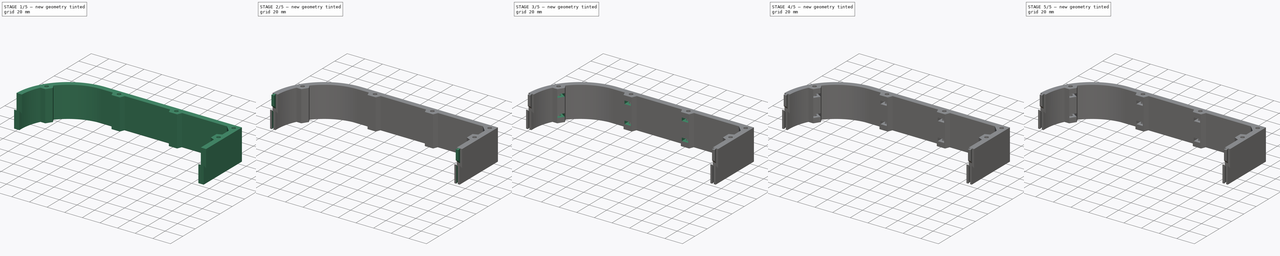
[diagram: build sequence overview — one tinted view per stage of 5, left to right]
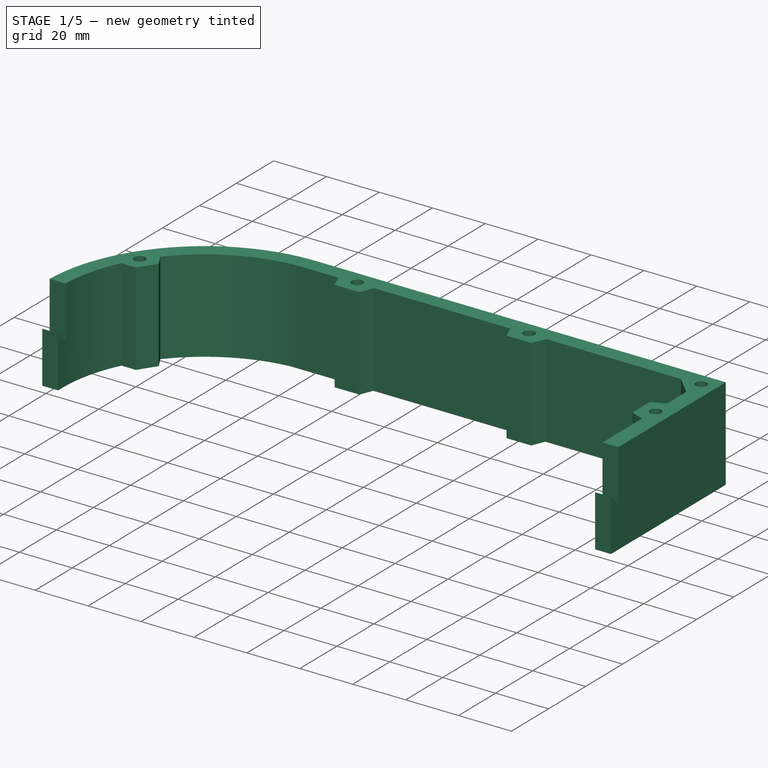
[diagram: stage 1 of 5 — iso view after this stage's code; geometry added in this stage tinted green]
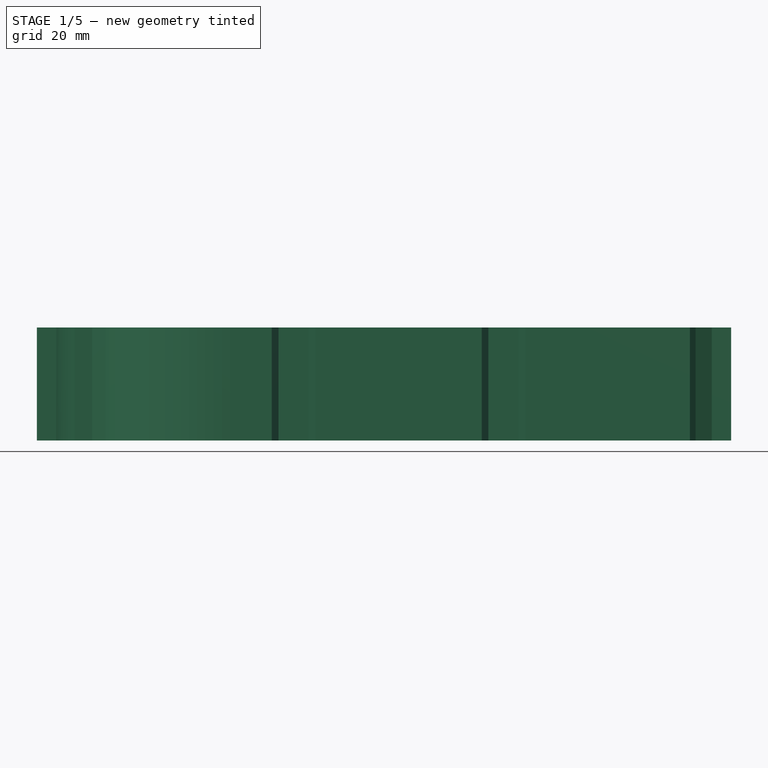
[diagram: stage 1 of 5 — front view after this stage's code; geometry added in this stage tinted green]
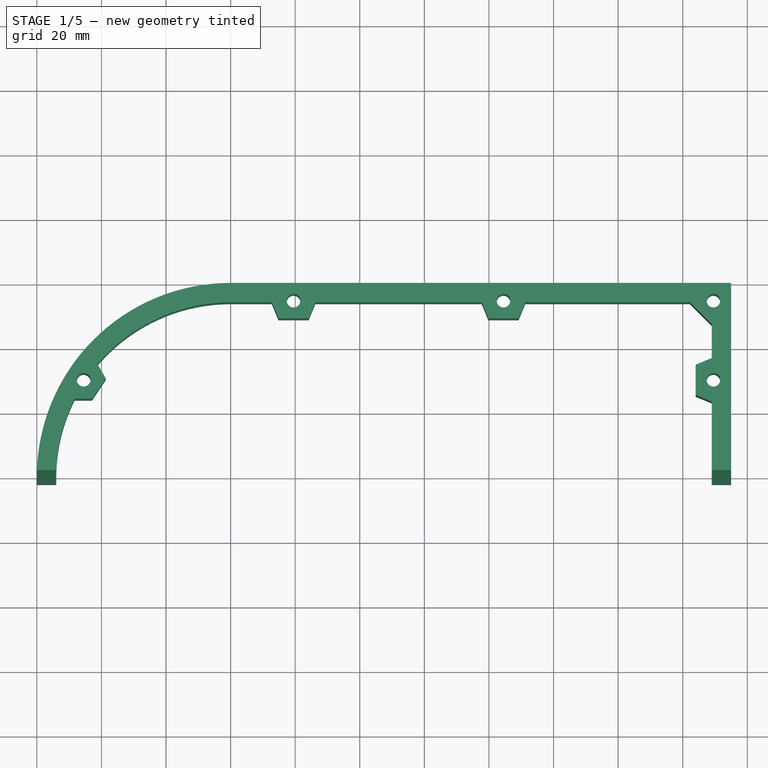
[diagram: stage 1 of 5 — top view after this stage's code; geometry added in this stage tinted green]
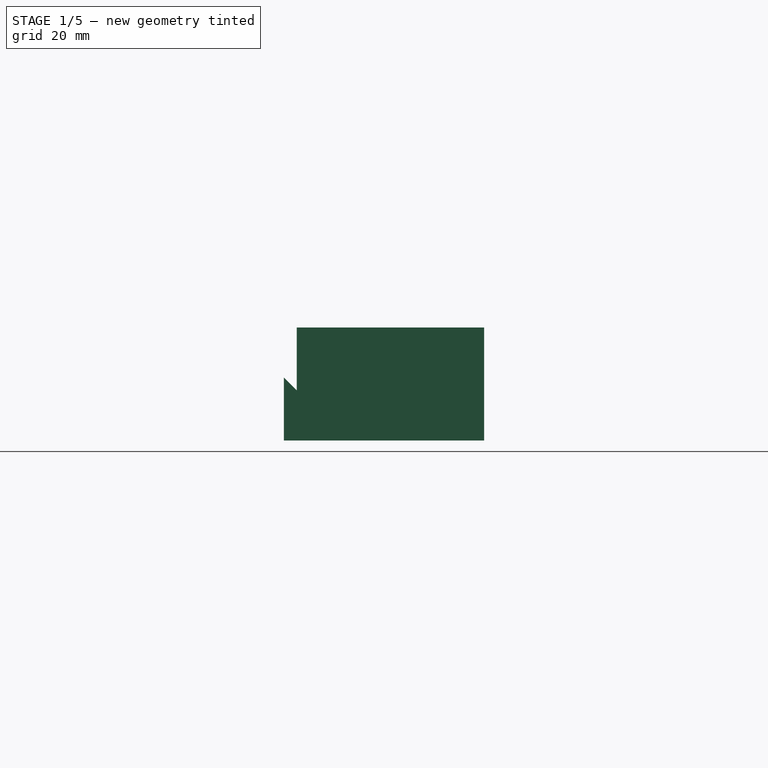
[diagram: stage 1 of 5 — right view after this stage's code; geometry added in this stage tinted green]
FCSTD DOCUMENT  (FreeCAD 0.19R24276 (Git))
Label: Base_half-wall
License: All rights reserved
LicenseURL: http://en.wikipedia.org/wiki/All_rights_reserved
objects: Sketcher::SketchObject×11, PartDesign::Pocket×8, PartDesign::Pad×3, PartDesign::Chamfer×2, PartDesign::Fillet×2, PartDesign::LinearPattern×1, PartDesign::Body×1
note: 43 computed .brp shape members not serialized (recipe doc carries the construction recipe); baked Part::Feature solids carry a one-line shape summary decoded from their .brp

FEATURE [Sketcher::SketchObject] Sketch
  FullyConstrained = true
  MapMode = 5
  Support = -> [XY_Plane]
  sketch-geometry (12):
    g0: ArcOfCircle CenterX=0 CenterY=0 CenterZ=0 NormalX=0 NormalY=0 NormalZ=1 AngleXU=0 Radius=60 StartAngle=1.5708 EndAngle=4.71239
    g1: LineSegment StartX=3.7e-15 StartY=60 StartZ=0 EndX=155 EndY=60 EndZ=0
    g2: LineSegment StartX=155 StartY=60 StartZ=0 EndX=155 EndY=-60 EndZ=0
    g3: LineSegment StartX=155 StartY=-60 StartZ=0 EndX=0 EndY=-60 EndZ=0
    g4: ArcOfCircle CenterX=0 CenterY=0 CenterZ=0 NormalX=0 NormalY=0 NormalZ=1 AngleXU=0 Radius=49 StartAngle=1.5708 EndAngle=4.71239
    g5: ArcOfCircle CenterX=0 CenterY=0 CenterZ=0 NormalX=0 NormalY=0 NormalZ=1 AngleXU=0 Radius=54.5 StartAngle=1.5708 EndAngle=4.71239
    g6: LineSegment StartX=3e-15 StartY=49 StartZ=0 EndX=144 EndY=49 EndZ=0
    g7: LineSegment StartX=144 StartY=49 StartZ=0 EndX=144 EndY=-49 EndZ=0
    g8: LineSegment StartX=144 StartY=-49 StartZ=0 EndX=0 EndY=-49 EndZ=0
    g9: LineSegment StartX=3.3e-15 StartY=54.5 StartZ=0 EndX=149.5 EndY=54.5 EndZ=0
    g10: LineSegment StartX=149.5 StartY=54.5 StartZ=0 EndX=149.5 EndY=-54.5 EndZ=0
    g11: LineSegment StartX=149.5 StartY=-54.5 StartZ=0 EndX=0 EndY=-54.5 EndZ=0
  constraints (36):
    c: Coincident(g0,g-1)
    c: PointOnObject(g0,g-2)
    c: PointOnObject(g0,g-2)
    c: Coincident(g1,g2)
    c: Coincident(g2,g3)
    c: Horizontal(g1)
    c: Horizontal(g3)
    c: Vertical(g2)
    c: Coincident(g1,g0)
    c: Coincident(g0,g3)
    c: Radius(g0) = 60
    c: DistanceX(g1,g1) = 155
    c: Coincident(g4,g0)
    c: PointOnObject(g4,g-2)
    c: PointOnObject(g4,g-2)
    c: Coincident(g5,g0)
    c: PointOnObject(g5,g-2)
    c: PointOnObject(g5,g-2)
    c: Coincident(g6,g7)
    c: Coincident(g7,g8)
    c: Horizontal(g6)
    c: Horizontal(g8)
    c: Vertical(g7)
    c: Coincident(g6,g4)
    c: Coincident(g8,g4)
    c: Radius(g4) = 49
    c: Coincident(g9,g10)
    c: Coincident(g10,g11)
    c: Horizontal(g9)
    c: Horizontal(g11)
    c: Vertical(g10)
    c: Coincident(g9,g5)
    c: Coincident(g5,g11)
    c: DistanceX(g6,g6) = 144
    c: DistanceX(g9,g9) = 149.5
    c: Radius(g5) = 54.5
FEATURE [PartDesign::Pad] Pad
  Direction = (1,1,1)
  Length = 35
  Length2 = 100
  Midplane = true
  Profile = -> Sketch
  Type = 0
FEATURE [Sketcher::SketchObject] Sketch001
  FullyConstrained = true
  MapMode = 5
  Placement = pos=(155,0,0) rot=(0.57735,0.57735,0.57735;2.0944rad)
  Support = -> [Pad]
  sketch-geometry (9):
    g0: LineSegment StartX=2 StartY=17.5 StartZ=0 EndX=2 EndY=-2 EndZ=0
    g1: LineSegment StartX=2 StartY=-2 StartZ=0 EndX=-2 EndY=2 EndZ=0
    g2: LineSegment StartX=-2 StartY=2 StartZ=0 EndX=-2 EndY=-17.5 EndZ=0
    g3: LineSegment StartX=2 StartY=17.5 StartZ=0 EndX=60 EndY=17.5 EndZ=0
    g4: LineSegment StartX=60 StartY=17.5 StartZ=0 EndX=60 EndY=-17.5 EndZ=0
    g5: LineSegment StartX=60 StartY=-17.5 StartZ=0 EndX=-2 EndY=-17.5 EndZ=0
    g6: LineSegment StartX=-2 StartY=-17.5 StartZ=0 EndX=-60 EndY=-17.5 EndZ=0
    g7: LineSegment StartX=-60 StartY=-17.5 StartZ=0 EndX=-60 EndY=17.5 EndZ=0
    g8: LineSegment StartX=-60 StartY=17.5 StartZ=0 EndX=2 EndY=17.5 EndZ=0
  constraints (25):
    c: Vertical(g0)
    c: Coincident(g1,g0)
    c: Vertical(g2)
    c: Symmetric(g1,g0,g-1)
    c: Coincident(g1,g2)
    c: Coincident(g3,g4)
    c: Coincident(g4,g5)
    c: Horizontal(g3)
    c: Horizontal(g5)
    c: Vertical(g4)
    c: Coincident(g3,g0)
    c: Coincident(g5,g2)
    c: DistanceX(g3) = 60
    c: Equal(g2,g0)
    c: DistanceY(g4,g4) = 35
    c: DistanceX(g1) = -2
    c: DistanceY(g1) = 2
    c: Coincident(g6,g7)
    c: Coincident(g7,g8)
    c: Horizontal(g6)
    c: Horizontal(g8)
    c: Vertical(g7)
    c: Coincident(g6,g2)
    c: Coincident(g8,g0)
    c: DistanceX(g7) = -60
FEATURE [PartDesign::Pocket] Pocket
  BaseFeature = -> Pad
  Length = 5
  Length2 = 100
  Profile = -> Sketch001
  Type = 1
FEATURE [Sketcher::SketchObject] Sketch002
  FullyConstrained = true
  MapMode = 5
  Placement = pos=(0,0,17.5) rot=(0,0,1;0rad)
  Support = -> [Pocket]
  sketch-geometry (35):
    g0: ArcOfCircle CenterX=0 CenterY=0 CenterZ=0 NormalX=0 NormalY=0 NormalZ=1 AngleXU=0 Radius=54.5 StartAngle=1.5708 EndAngle=3.14159
    g1: LineSegment StartX=3.3e-15 StartY=54.5 StartZ=0 EndX=149.5 EndY=54.5 EndZ=0
    g2: LineSegment StartX=149.5 StartY=54.5 StartZ=0 EndX=149.5 EndY=0 EndZ=0
    g3: Circle CenterX=149.5 CenterY=54.5 CenterZ=0 NormalX=0 NormalY=0 NormalZ=1 AngleXU=0 Radius=2.1
    g4: Circle CenterX=84.5 CenterY=54.5 CenterZ=0 NormalX=0 NormalY=0 NormalZ=1 AngleXU=0 Radius=2.1
    g5: Circle CenterX=149.5 CenterY=30 CenterZ=0 NormalX=0 NormalY=0 NormalZ=1 AngleXU=0 Radius=2.1
    g6: Circle CenterX=19.5 CenterY=54.5 CenterZ=0 NormalX=0 NormalY=0 NormalZ=1 AngleXU=0 Radius=2.1
    g7: Circle CenterX=-45.5 CenterY=30 CenterZ=0 NormalX=0 NormalY=0 NormalZ=1 AngleXU=0 Radius=2.1
    g8: ArcOfCircle CenterX=0 CenterY=0 CenterZ=0 NormalX=0 NormalY=0 NormalZ=1 AngleXU=0 Radius=54 StartAngle=1.5708 EndAngle=2.43915
    g9: LineSegment StartX=-48.3055 StartY=24.1366 StartZ=0 EndX=-42.8726 EndY=24.1366 EndZ=0
    g10: LineSegment StartX=-41.2162 StartY=34.8887 StartZ=0 EndX=-38.6499 EndY=30.4437 EndZ=0
    g11: ArcOfCircle CenterX=0 CenterY=0 CenterZ=0 NormalX=0 NormalY=0 NormalZ=1 AngleXU=0 Radius=49.2 StartAngle=2.47441 EndAngle=2.62884
    g12: LineSegment StartX=3.3e-15 StartY=54 StartZ=0 EndX=12.75 EndY=54 EndZ=0
    g13: ArcOfCircle CenterX=0 CenterY=0 CenterZ=0 NormalX=0 NormalY=0 NormalZ=1 AngleXU=0 Radius=54 StartAngle=2.67821 EndAngle=3.14159
    g14: LineSegment StartX=12.75 StartY=54 StartZ=0 EndX=14.8211 EndY=49 EndZ=0
    g15: LineSegment StartX=14.8211 StartY=49 StartZ=0 EndX=24.1789 EndY=49 EndZ=0
    g16: LineSegment StartX=24.1789 StartY=49 StartZ=0 EndX=26.25 EndY=54 EndZ=0
    g17: LineSegment StartX=77.75 StartY=54 StartZ=0 EndX=79.8211 EndY=49 EndZ=0
    g18: LineSegment StartX=79.8211 StartY=49 StartZ=0 EndX=89.1789 EndY=49 EndZ=0
    g19: LineSegment StartX=89.1789 StartY=49 StartZ=0 EndX=91.25 EndY=54 EndZ=0
    g20: LineSegment StartX=142.222 StartY=54 StartZ=0 EndX=149 EndY=47.2218 EndZ=0
    g21: LineSegment StartX=149 StartY=36.75 StartZ=0 EndX=144 EndY=34.6789 EndZ=0
    g22: LineSegment StartX=144 StartY=34.6789 StartZ=0 EndX=144 EndY=25.3211 EndZ=0
    g23: LineSegment StartX=144 StartY=25.3211 StartZ=0 EndX=149 EndY=23.25 EndZ=0
    g24: LineSegment StartX=149 StartY=-5 StartZ=0 EndX=-54 EndY=-5 EndZ=0
    g25: LineSegment StartX=-54 StartY=-5 StartZ=0 EndX=-54 EndY=0 EndZ=0
    g26: LineSegment StartX=19.5 StartY=54.5 StartZ=0 EndX=19.5 EndY=49 EndZ=0
    g27: LineSegment StartX=84.5 StartY=54.5 StartZ=0 EndX=84.5 EndY=49 EndZ=0
    g28: LineSegment StartX=149.5 StartY=54.5 StartZ=0 EndX=145.611 EndY=50.6109 EndZ=0
    g29: LineSegment StartX=149.5 StartY=30 StartZ=0 EndX=144 EndY=30 EndZ=0
    g30: LineSegment StartX=149 StartY=23.25 StartZ=0 EndX=149 EndY=-5 EndZ=0
    g31: LineSegment StartX=149 StartY=47.2218 StartZ=0 EndX=149 EndY=36.75 EndZ=0
    g32: LineSegment StartX=91.25 StartY=54 StartZ=0 EndX=142.222 EndY=54 EndZ=0
    g33: LineSegment StartX=26.25 StartY=54 StartZ=0 EndX=77.75 EndY=54 EndZ=0
    g34: LineSegment StartX=-42.8726 StartY=24.1366 StartZ=0 EndX=-38.6499 EndY=30.4437 EndZ=0
  constraints (97):
    c: Coincident(g0,g-1)
    c: PointOnObject(g0,g-1)
    c: PointOnObject(g0,g-2)
    c: Tangent(g0,g1) = 1.5708
    c: Coincident(g1,g2)
    c: PointOnObject(g2,g-1)
    c: Vertical(g2)
    c: Radius(g0) = 54.5
    c: DistanceX(g1,g1) = 149.5
    c: Coincident(g3,g1)
    c: PointOnObject(g4,g1)
    c: PointOnObject(g5,g2)
    c: PointOnObject(g6,g1)
    c: PointOnObject(g7,g0)
    c: Equal(g7,g6)
    c: Equal(g6,g4)
    c: Equal(g4,g3)
    c: Equal(g3,g5)
    c: Radius(g5) = 2.1
    c: DistanceX(g4,g3) = 65
    c: DistanceX(g6,g4) = 65
    c: DistanceX(g7,g6) = 65
    c: Coincident(g8,g-1)
    c: PointOnObject(g13,g-1)
    c: PointOnObject(g8,g-2)
    c: PointOnObject(g9,g8)
    c: Horizontal(g9)
    c: Coincident(g11,g9)
    c: Coincident(g11,g10)
    c: Radius(g11) = 49.2
    c: Coincident(g12,g8)
    c: Horizontal(g12)
    c: DistanceX(g30) = 149
    c: Angle(g10,g9) = 1.0472
    c: Coincident(g11,g8)
    c: Radius(g8) = 54
    c: Distance(g9,g7) = 6.5
    c: Distance(g10,g7) = 6.5
    c: Equal(g8,g13)
    c: Coincident(g8,g10)
    c: Coincident(g8,g13)
    c: PointOnObject(g13,g9)
    c: Coincident(g14,g15)
    c: Horizontal(g15)
    c: Coincident(g15,g16)
    c: PointOnObject(g16,g12)
    c: Coincident(g17,g18)
    c: Horizontal(g18)
    c: Coincident(g18,g19)
    c: Coincident(g21,g22)
    c: Vertical(g22)
    c: Coincident(g22,g23)
    c: Coincident(g30,g24)
    c: Horizontal(g24)
    c: Coincident(g24,g25)
    c: Coincident(g25,g13)
    c: Vertical(g25)
    c: DistanceY(g25,g25) = 5
    c: DistanceY(g14,g14) = 5
    c: Coincident(g26,g6)
    c: Coincident(g27,g4)
    c: PointOnObject(g27,g18)
    c: Coincident(g28,g3)
    c: PointOnObject(g28,g20)
    c: Coincident(g29,g5)
    c: PointOnObject(g29,g22)
    c: Equal(g26,g27)
    c: Equal(g27,g29)
    c: Symmetric(g14,g15,g26)
    c: Symmetric(g14,g16,g26)
    c: DistanceX(g14,g16) = 13.5
    c: Angle(g16,g14) = 0.785398
    c: Symmetric(g17,g18,g27)
    c: Symmetric(g17,g19,g27)
    c: DistanceX(g17,g19) = 13.5
    c: Angle(g19,g17) = 0.785398
    c: Symmetric(g20,g20,g28)
    c: Equal(g29,g28)
    c: Symmetric(g21,g22,g29)
    c: Symmetric(g21,g23,g29)
    c: DistanceY(g23,g21) = 13.5
    c: Angle(g23,g21) = 0.785398
    c: Coincident(g31,g21)
    c: Coincident(g32,g20)
    c: Coincident(g31,g20)
    c: Vertical(g31)
    c: Coincident(g23,g30)
    c: Vertical(g30)
    c: Coincident(g33,g17)
    c: Tangent(g12,g32)
    c: PointOnObject(g32,g19)
    c: Coincident(g12,g14)
    c: Tangent(g12,g33)
    c: PointOnObject(g33,g16)
    c: Coincident(g34,g9)
    c: Coincident(g34,g10)
    c: Horizontal(g5,g7)
FEATURE [PartDesign::Pocket] Pocket001
  BaseFeature = -> Pocket
  Length = 5
  Length2 = 100
  Profile = -> Sketch002
  Type = 1
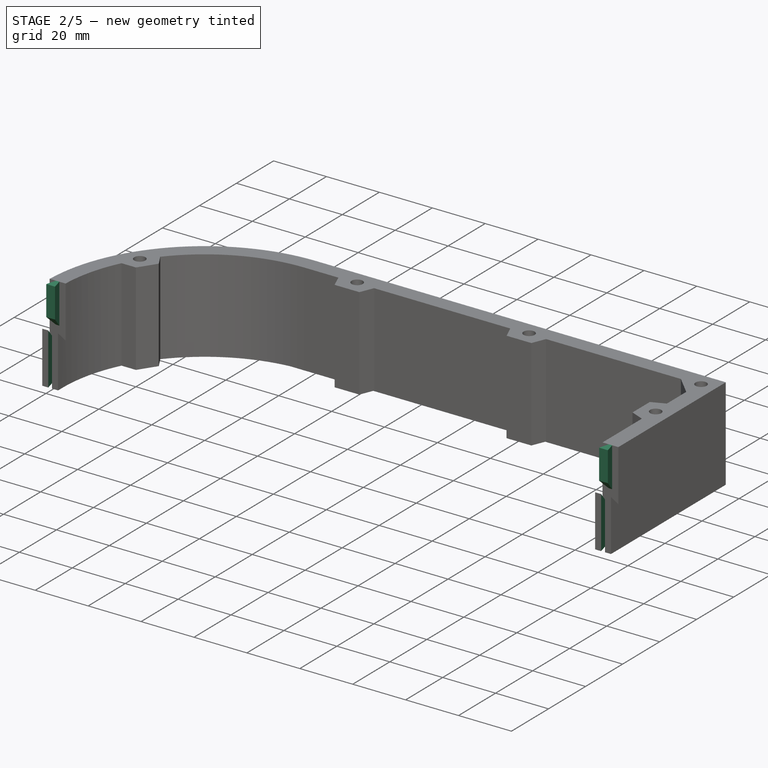
[diagram: stage 2 of 5 — iso view after this stage's code; geometry added in this stage tinted green]
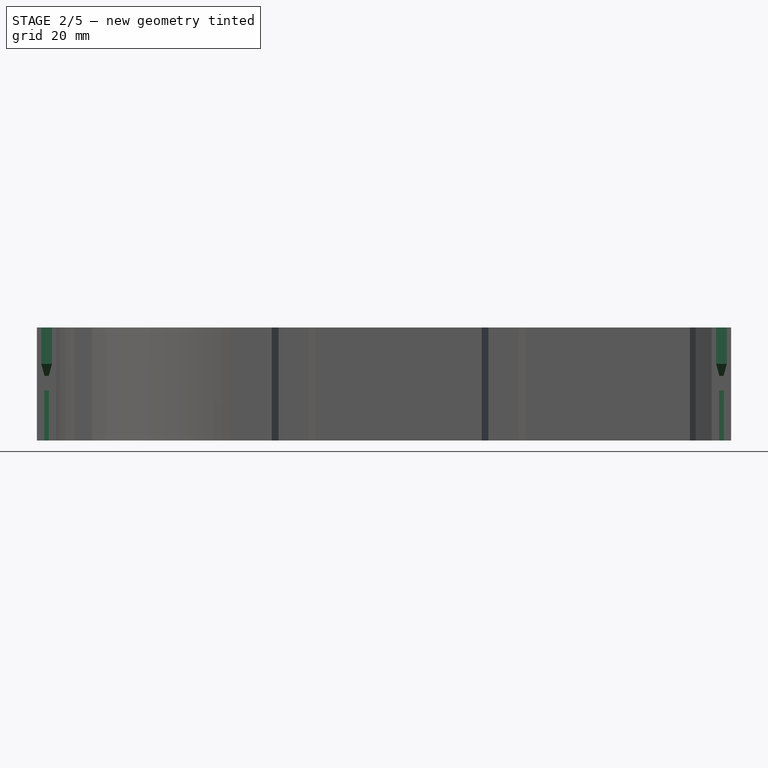
[diagram: stage 2 of 5 — front view after this stage's code; geometry added in this stage tinted green]
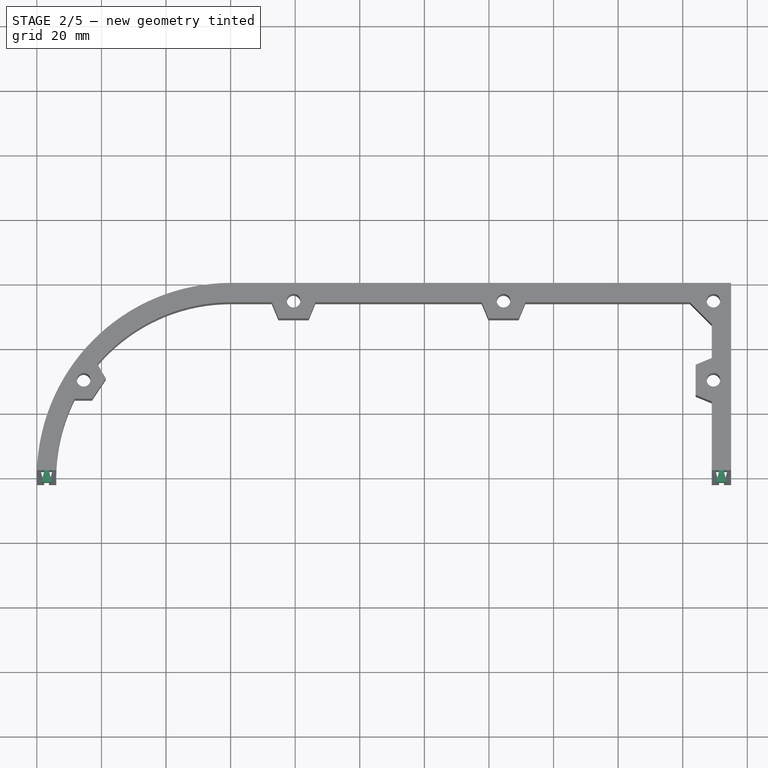
[diagram: stage 2 of 5 — top view after this stage's code; geometry added in this stage tinted green]
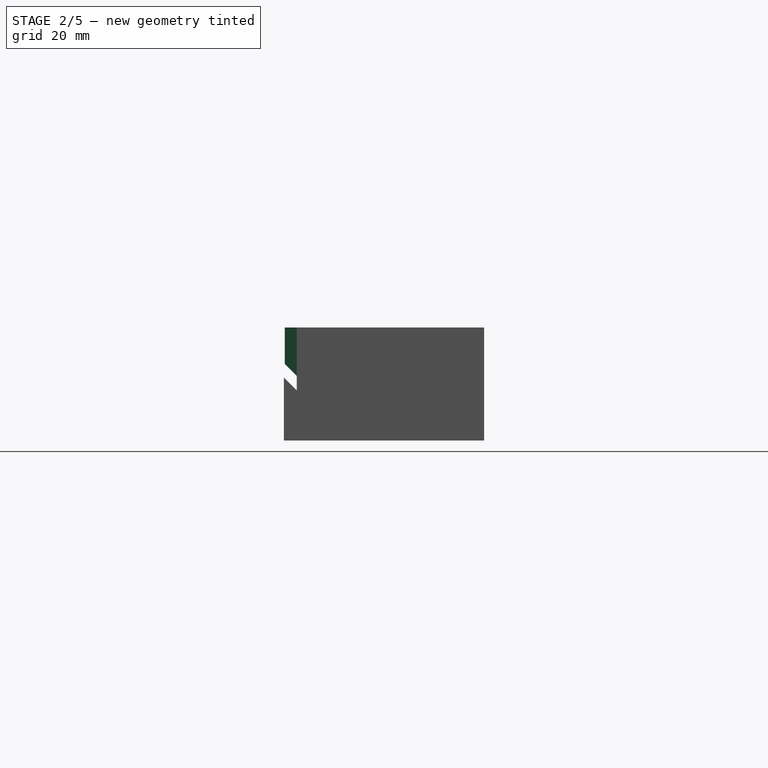
[diagram: stage 2 of 5 — right view after this stage's code; geometry added in this stage tinted green]
FEATURE [Sketcher::SketchObject] Sketch003
  ExternalGeometry = -> [Pocket001]
  FullyConstrained = true
  MapMode = 5
  Placement = pos=(0,0,17.5) rot=(0,0,1;0rad)
  Support = -> [Pocket001]
  sketch-geometry (20):
    g0: LineSegment StartX=-59.9667 StartY=2 StartZ=0 EndX=-57.6118 EndY=2 EndZ=0
    g1: LineSegment StartX=-57.6118 StartY=2 StartZ=0 EndX=-58.6167 EndY=-1.75 EndZ=0
    g2: LineSegment StartX=-58.6167 StartY=-1.75 StartZ=0 EndX=-55.313 EndY=-1.75 EndZ=0
    g3: LineSegment StartX=-55.313 StartY=-1.75 StartZ=0 EndX=-56.3178 EndY=2 EndZ=0
    g4: LineSegment StartX=-56.3178 StartY=2 StartZ=0 EndX=-53.963 EndY=2 EndZ=0
    g5: LineSegment StartX=-59.9667 StartY=2 StartZ=0 EndX=-59.9667 EndY=-1.75 EndZ=0
    g6: LineSegment StartX=-59.9667 StartY=-1.75 StartZ=0 EndX=-58.6167 EndY=-1.75 EndZ=0
    g7: LineSegment StartX=-55.313 StartY=-1.75 StartZ=0 EndX=-53.963 EndY=-1.75 EndZ=0
    g8: LineSegment StartX=-53.963 StartY=-1.75 StartZ=0 EndX=-53.963 EndY=2 EndZ=0
    g9: LineSegment StartX=-57.6118 StartY=2 StartZ=0 EndX=-56.3178 EndY=2 EndZ=0
    g10: LineSegment StartX=149 StartY=2 StartZ=0 EndX=151.355 EndY=2 EndZ=0
    g11: LineSegment StartX=151.355 StartY=2 StartZ=0 EndX=150.35 EndY=-1.75 EndZ=0
    g12: LineSegment StartX=150.35 StartY=-1.75 StartZ=0 EndX=153.65 EndY=-1.75 EndZ=0
    g13: LineSegment StartX=153.65 StartY=-1.75 StartZ=0 EndX=152.645 EndY=2 EndZ=0
    g14: LineSegment StartX=152.645 StartY=2 StartZ=0 EndX=155 EndY=2 EndZ=0
    g15: LineSegment StartX=149 StartY=2 StartZ=0 EndX=149 EndY=-1.75 EndZ=0
    g16: LineSegment StartX=149 StartY=-1.75 StartZ=0 EndX=150.35 EndY=-1.75 EndZ=0
    g17: LineSegment StartX=153.65 StartY=-1.75 StartZ=0 EndX=155 EndY=-1.75 EndZ=0
    g18: LineSegment StartX=155 StartY=-1.75 StartZ=0 EndX=155 EndY=2 EndZ=0
    g19: LineSegment StartX=151.355 StartY=2 StartZ=0 EndX=152.645 EndY=2 EndZ=0
  constraints (52):
    c: Coincident(g-3,g0)
    c: PointOnObject(g0,g-3)
    c: Coincident(g0,g1)
    c: Coincident(g1,g2)
    c: Horizontal(g2)
    c: Coincident(g2,g3)
    c: PointOnObject(g3,g-3)
    c: Coincident(g3,g4)
    c: Coincident(g0,g5)
    c: Vertical(g5)
    c: Coincident(g5,g6)
    c: Coincident(g6,g1)
    c: Coincident(g2,g7)
    c: Coincident(g9,g1)
    c: Coincident(g9,g3)
    c: Equal(g0,g4)
    c: Equal(g6,g7)
    c: Angle(g1,g3) = 0.523599
    c: Coincident(g10,g11)
    c: Coincident(g11,g12)
    c: Horizontal(g12)
    c: Coincident(g12,g13)
    c: Coincident(g13,g14)
    c: Coincident(g10,g15)
    c: Vertical(g15)
    c: Coincident(g15,g16)
    c: Coincident(g16,g11)
    c: Horizontal(g16)
    c: Coincident(g12,g17)
    c: Horizontal(g17)
    c: Coincident(g17,g18)
    c: Coincident(g18,g14)
    c: Vertical(g18)
    c: Coincident(g19,g11)
    c: Coincident(g19,g13)
    c: Equal(g10,g14)
    c: Equal(g16,g17)
    c: DistanceX(g16,g16) = 1.35
    c: Angle(g11,g13) = 0.523599
    c: DistanceY(g18,g18) = 3.75
    c: DistanceY(g5,g5) = 3.75
    c: Equal(g7,g16)
    c: Coincident(g7,g8)
    c: Horizontal(g7)
    c: Vertical(g8)
    c: Horizontal(g6)
    c: Coincident(g8,g4)
    c: Coincident(g8,g-3)
    c: Coincident(g10,g-4)
    c: Horizontal(g19)
    c: Horizontal(g10)
    c: Coincident(g14,g-4)
FEATURE [PartDesign::Pad] Pad001
  BaseFeature = -> Pocket001
  Direction = (1,1,1)
  Length = 15
  Length2 = 100
  Profile = -> Sketch003
  Reversed = true
  Type = 0
FEATURE [Sketcher::SketchObject] Sketch004
  ExternalGeometry = -> [Pad001]
  FullyConstrained = true
  MapMode = 5
  Placement = pos=(0,0,-17.5) rot=(1,0,0;3.14159rad)
  Support = -> [Pad001]
  sketch-geometry (20):
    g0: LineSegment StartX=-57.6949 StartY=2 StartZ=0 EndX=-56.2718 EndY=2 EndZ=0
    g1: LineSegment StartX=-56.2718 StartY=2 StartZ=0 EndX=-55.2 EndY=-2 EndZ=0
    g2: LineSegment StartX=-55.2 StartY=-2 StartZ=0 EndX=-58.7667 EndY=-2 EndZ=0
    g3: LineSegment StartX=-58.7667 StartY=-2 StartZ=0 EndX=-57.6949 EndY=2 EndZ=0
    g4: LineSegment StartX=-59.9667 StartY=2 StartZ=0 EndX=-59.9667 EndY=-2 EndZ=0
    g5: LineSegment StartX=-59.9667 StartY=-2 StartZ=0 EndX=-58.7667 EndY=-2 EndZ=0
    g6: LineSegment StartX=-55.2 StartY=-2 StartZ=0 EndX=-54 EndY=-2 EndZ=0
    g7: LineSegment StartX=-54 StartY=-2 StartZ=0 EndX=-54 EndY=2 EndZ=0
    g8: LineSegment StartX=152.728 StartY=2 StartZ=0 EndX=151.272 EndY=2 EndZ=0
    g9: LineSegment StartX=151.272 StartY=2 StartZ=0 EndX=150.2 EndY=-2 EndZ=0
    g10: LineSegment StartX=150.2 StartY=-2 StartZ=0 EndX=153.8 EndY=-2 EndZ=0
    g11: LineSegment StartX=153.8 StartY=-2 StartZ=0 EndX=152.728 EndY=2 EndZ=0
    g12: LineSegment StartX=152.728 StartY=2 StartZ=0 EndX=149 EndY=2 EndZ=0
    g13: LineSegment StartX=149 StartY=2 StartZ=0 EndX=149 EndY=-2 EndZ=0
    g14: LineSegment StartX=149 StartY=-2 StartZ=0 EndX=153.8 EndY=-2 EndZ=0
    g15: LineSegment StartX=150.2 StartY=-2 StartZ=0 EndX=155 EndY=-2 EndZ=0
    g16: LineSegment StartX=155 StartY=-2 StartZ=0 EndX=155 EndY=2 EndZ=0
    g17: LineSegment StartX=155 StartY=2 StartZ=0 EndX=151.272 EndY=2 EndZ=0
    g18: LineSegment StartX=-59.9667 StartY=2 StartZ=0 EndX=-57.6949 EndY=2 EndZ=0
    g19: LineSegment StartX=-56.2718 StartY=2 StartZ=0 EndX=-54 EndY=2 EndZ=0
  constraints (52):
    c: Coincident(g0,g1)
    c: Coincident(g1,g2)
    c: Coincident(g2,g3)
    c: Coincident(g3,g0)
    c: Vertical(g4)
    c: Coincident(g4,g5)
    c: Coincident(g5,g2)
    c: Coincident(g1,g6)
    c: Coincident(g6,g7)
    c: Vertical(g7)
    c: Equal(g6,g5)
    c: Horizontal(g5)
    c: Equal(g7,g4)
    c: Horizontal(g2)
    c: Coincident(g7,g-4)
    c: DistanceY(g4,g4) = 4
    c: Coincident(g8,g9)
    c: Coincident(g9,g10)
    c: Coincident(g10,g11)
    c: Coincident(g11,g8)
    c: Coincident(g11,g12)
    c: Coincident(g12,g13)
    c: Vertical(g13)
    c: Coincident(g13,g14)
    c: Coincident(g14,g10)
    c: Coincident(g9,g15)
    c: Coincident(g15,g16)
    c: Vertical(g16)
    c: Coincident(g17,g16)
    c: Coincident(g17,g8)
    c: Equal(g12,g17)
    c: Equal(g15,g14)
    c: Horizontal(g14)
    c: Equal(g16,g13)
    c: Horizontal(g10)
    c: Horizontal(g12)
    c: Horizontal(g17)
    c: Equal(g4,g13) = 4
    c: Coincident(g17,g-3)
    c: Coincident(g12,g-3)
    c: Angle(g3,g1) = 0.523599
    c: DistanceX(g5,g5) = 1.2
    c: Angle(g9,g11) = 0.523599
    c: DistanceX(g13,g9) = 1.2
    c: Coincident(g4,g-4)
    c: Coincident(g18,g4)
    c: Coincident(g18,g0)
    c: Horizontal(g18)
    c: Coincident(g19,g0)
    c: Coincident(g19,g7)
    c: Horizontal(g19)
    c: Equal(g18,g19)
FEATURE [PartDesign::Pocket] Pocket002
  BaseFeature = -> Pad001
  Length = 19.9
  Length2 = 100
  Profile = -> Sketch004
  Type = 0
FEATURE [PartDesign::Chamfer] Chamfer
  Angle = 45
  Base = -> Pocket002 [Edge143,Edge161]
  BaseFeature = -> Pocket002
  ChamferType = 0
  FlipDirection = false
  Size = 3.74
  Size2 = 1
  SupportTransform = false
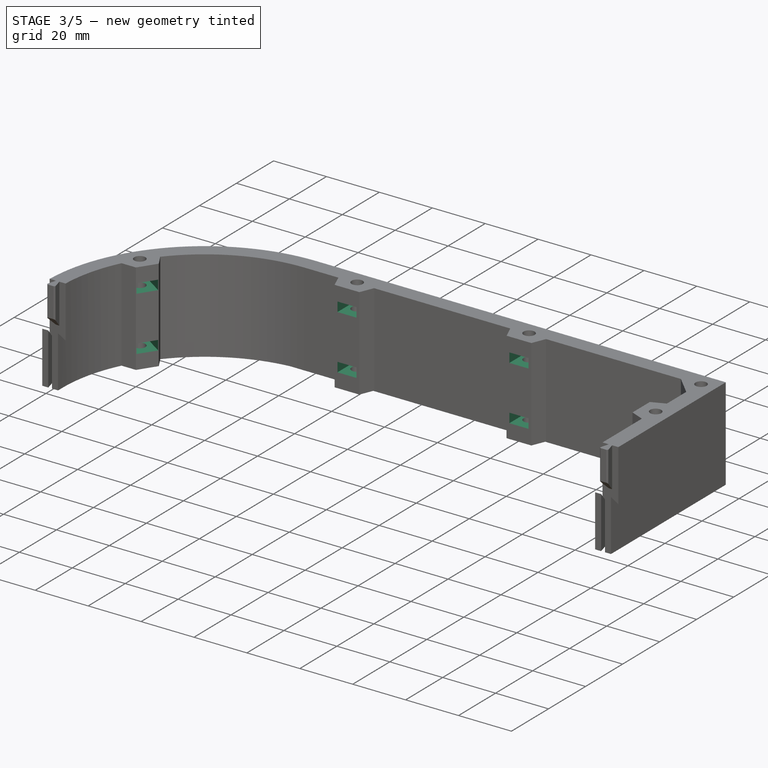
[diagram: stage 3 of 5 — iso view after this stage's code; geometry added in this stage tinted green]
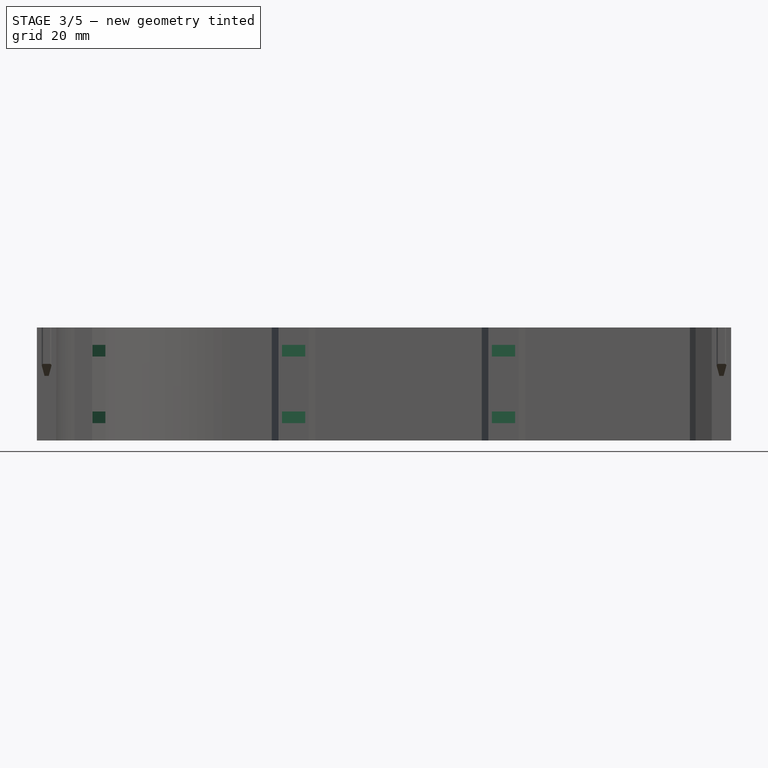
[diagram: stage 3 of 5 — front view after this stage's code; geometry added in this stage tinted green]
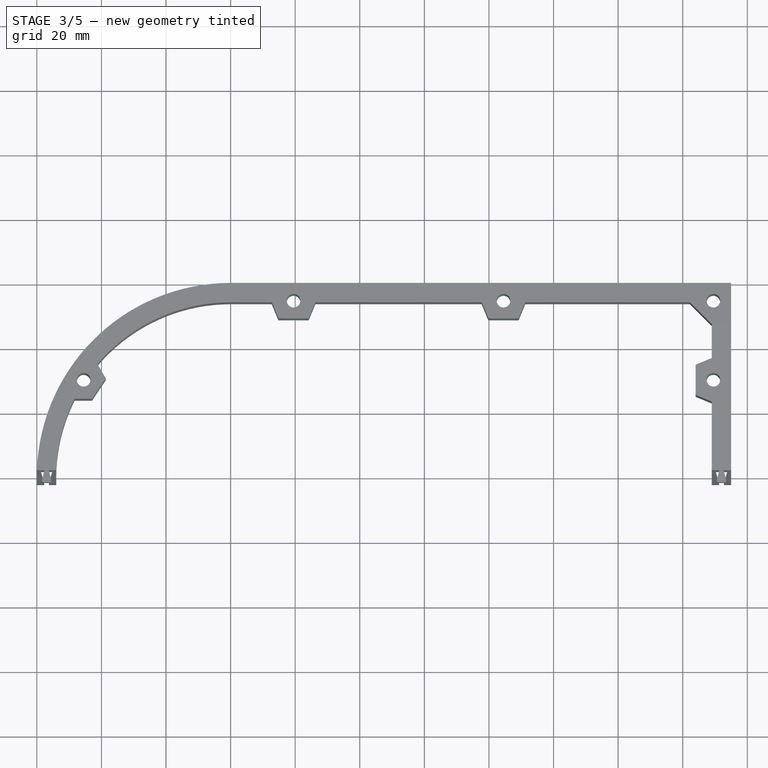
[diagram: stage 3 of 5 — top view after this stage's code; geometry added in this stage tinted green]
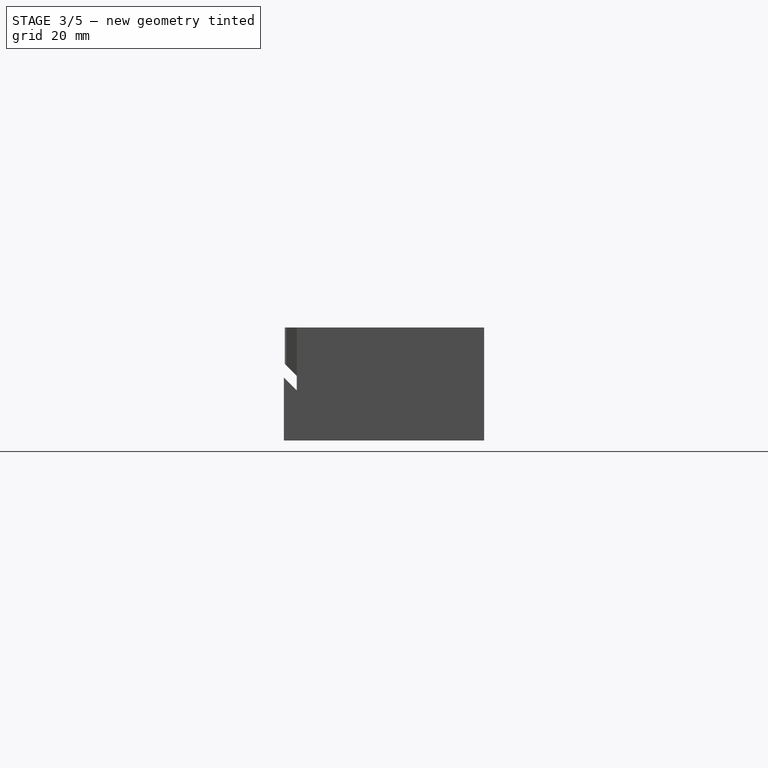
[diagram: stage 3 of 5 — right view after this stage's code; geometry added in this stage tinted green]
FEATURE [PartDesign::Fillet] Fillet
  Base = -> Chamfer [Edge1,Edge8,Edge159,Edge164]
  BaseFeature = -> Chamfer
  Radius = 0.5
  SupportTransform = false
FEATURE [Sketcher::SketchObject] Sketch005
  ExternalGeometry = -> [Fillet]
  FullyConstrained = true
  MapMode = 5
  Placement = pos=(0,49,0) rot=(1,0,0;1.5708rad)
  Support = -> [Fillet]
  sketch-geometry (18):
    g0: LineSegment StartX=15.9 StartY=12.1 StartZ=0 EndX=23.1 EndY=12.1 EndZ=0
    g1: LineSegment StartX=23.1 StartY=12.1 StartZ=0 EndX=23.1 EndY=8.5 EndZ=0
    g2: LineSegment StartX=23.1 StartY=8.5 StartZ=0 EndX=15.9 EndY=8.5 EndZ=0
    g3: LineSegment StartX=15.9 StartY=8.5 StartZ=0 EndX=15.9 EndY=12.1 EndZ=0
    g4: LineSegment StartX=15.9 StartY=-8.5 StartZ=0 EndX=23.1 EndY=-8.5 EndZ=0
    g5: LineSegment StartX=23.1 StartY=-8.5 StartZ=0 EndX=23.1 EndY=-12.1 EndZ=0
    g6: LineSegment StartX=23.1 StartY=-12.1 StartZ=0 EndX=15.9 EndY=-12.1 EndZ=0
    g7: LineSegment StartX=15.9 StartY=-12.1 StartZ=0 EndX=15.9 EndY=-8.5 EndZ=0
    g8: LineSegment StartX=80.9 StartY=12.1 StartZ=0 EndX=88.1 EndY=12.1 EndZ=0
    g9: LineSegment StartX=88.1 StartY=12.1 StartZ=0 EndX=88.1 EndY=8.5 EndZ=0
    g10: LineSegment StartX=88.1 StartY=8.5 StartZ=0 EndX=80.9 EndY=8.5 EndZ=0
    g11: LineSegment StartX=80.9 StartY=8.5 StartZ=0 EndX=80.9 EndY=12.1 EndZ=0
    g12: LineSegment StartX=80.9 StartY=-8.5 StartZ=0 EndX=88.1 EndY=-8.5 EndZ=0
    g13: LineSegment StartX=88.1 StartY=-8.5 StartZ=0 EndX=88.1 EndY=-12.1 EndZ=0
    g14: LineSegment StartX=88.1 StartY=-12.1 StartZ=0 EndX=80.9 EndY=-12.1 EndZ=0
    g15: LineSegment StartX=80.9 StartY=-12.1 StartZ=0 EndX=80.9 EndY=-8.5 EndZ=0
    g16: LineSegment StartX=19.5 StartY=12.1 StartZ=0 EndX=19.5 EndY=17.5 EndZ=0
    g17: LineSegment StartX=84.5 StartY=12.1 StartZ=0 EndX=84.5 EndY=17.5 EndZ=0
  constraints (50):
    c: Coincident(g0,g1)
    c: Coincident(g1,g2)
    c: Coincident(g2,g3)
    c: Coincident(g3,g0)
    c: Horizontal(g0)
    c: Horizontal(g2)
    c: Vertical(g1)
    c: Vertical(g3)
    c: Coincident(g4,g5)
    c: Coincident(g5,g6)
    c: Coincident(g6,g7)
    c: Coincident(g7,g4)
    c: Horizontal(g4)
    c: Horizontal(g6)
    c: Vertical(g5)
    c: Vertical(g7)
    c: Coincident(g8,g9)
    c: Coincident(g9,g10)
    c: Coincident(g10,g11)
    c: Coincident(g11,g8)
    c: Horizontal(g8)
    c: Horizontal(g10)
    c: Vertical(g9)
    c: Vertical(g11)
    c: Coincident(g12,g13)
    c: Coincident(g13,g14)
    c: Coincident(g14,g15)
    c: Coincident(g15,g12)
    c: Horizontal(g12)
    c: Horizontal(g14)
    c: Vertical(g13)
    c: Vertical(g15)
    c: Equal(g0,g4)
    c: Equal(g4,g8)
    c: Equal(g8,g12)
    c: Equal(g11,g15)
    c: Equal(g15,g1)
    c: Equal(g1,g5)
    c: Symmetric(g1,g4,g-1)
    c: Symmetric(g10,g12,g-1)
    c: DistanceY(g3,g3) = 3.6
    c: DistanceX(g0,g0) = 7.2
    c: Vertical(g16)
    c: Vertical(g17)
    c: Symmetric(g8,g8,g17)
    c: Symmetric(g0,g0,g16)
    c: PointOnObject(g10,g2)
    c: Symmetric(g-4,g-4,g17)
    c: Symmetric(g-3,g-3,g16)
    c: DistanceY(g1,g-3) = 9
FEATURE [PartDesign::Pocket] Pocket003
  BaseFeature = -> Fillet
  Length = 9.8
  Length2 = 100
  Profile = -> Sketch005
  Type = 0
FEATURE [Sketcher::SketchObject] Sketch006
  ExternalGeometry = -> [Pocket003]
  FullyConstrained = true
  MapMode = 5
  Placement = pos=(144,0,0) rot=(0.57735,-0.57735,-0.57735;2.0944rad)
  Support = -> [Pocket003]
  sketch-geometry (9):
    g0: LineSegment StartX=-33.6 StartY=12.1 StartZ=0 EndX=-26.4 EndY=12.1 EndZ=0
    g1: LineSegment StartX=-26.4 StartY=12.1 StartZ=0 EndX=-26.4 EndY=8.5 EndZ=0
    g2: LineSegment StartX=-26.4 StartY=8.5 StartZ=0 EndX=-33.6 EndY=8.5 EndZ=0
    g3: LineSegment StartX=-33.6 StartY=8.5 StartZ=0 EndX=-33.6 EndY=12.1 EndZ=0
    g4: LineSegment StartX=-33.6 StartY=-8.5 StartZ=0 EndX=-26.4 EndY=-8.5 EndZ=0
    g5: LineSegment StartX=-26.4 StartY=-8.5 StartZ=0 EndX=-26.4 EndY=-12.1 EndZ=0
    g6: LineSegment StartX=-26.4 StartY=-12.1 StartZ=0 EndX=-33.6 EndY=-12.1 EndZ=0
    g7: LineSegment StartX=-33.6 StartY=-12.1 StartZ=0 EndX=-33.6 EndY=-8.5 EndZ=0
    g8: LineSegment StartX=-30 StartY=17.5 StartZ=0 EndX=-30 EndY=12.1 EndZ=0
  constraints (25):
    c: Coincident(g0,g1)
    c: Coincident(g1,g2)
    c: Coincident(g2,g3)
    c: Coincident(g3,g0)
    c: Horizontal(g0)
    c: Horizontal(g2)
    c: Vertical(g1)
    c: Vertical(g3)
    c: Coincident(g4,g5)
    c: Coincident(g5,g6)
    c: Coincident(g6,g7)
    c: Coincident(g7,g4)
    c: Horizontal(g4)
    c: Horizontal(g6)
    c: Vertical(g5)
    c: Vertical(g7)
    c: Equal(g7,g3)
    c: Equal(g4,g2)
    c: Symmetric(g4,g1,g-1)
    c: Symmetric(g0,g0,g8)
    c: DistanceY(g1,g1) = 3.6
    c: DistanceX(g0,g0) = 7.2
    c: Vertical(g8)
    c: Symmetric(g-3,g-3,g8)
    c: DistanceY(g1,g-3) = 9
FEATURE [PartDesign::Pocket] Pocket004
  BaseFeature = -> Pocket003
  Length = 9.8
  Length2 = 100
  Profile = -> Sketch006
  Type = 0
FEATURE [Sketcher::SketchObject] Sketch007
  ExternalGeometry = -> [Pocket004]
  FullyConstrained = true
  MapMode = 5
  Placement = pos=(-40.7613,27.2902,0) rot=(0.798052,0.426095,0.426095;1.79449rad)
  Support = -> [Pocket004]
  sketch-geometry (9):
    g0: LineSegment StartX=-3.6 StartY=12.1 StartZ=0 EndX=3.6 EndY=12.1 EndZ=0
    g1: LineSegment StartX=3.6 StartY=12.1 StartZ=0 EndX=3.6 EndY=8.5 EndZ=0
    g2: LineSegment StartX=3.6 StartY=8.5 StartZ=0 EndX=-3.6 EndY=8.5 EndZ=0
    g3: LineSegment StartX=-3.6 StartY=8.5 StartZ=0 EndX=-3.6 EndY=12.1 EndZ=0
    g4: LineSegment StartX=-3.6 StartY=-8.5 StartZ=0 EndX=3.6 EndY=-8.5 EndZ=0
    g5: LineSegment StartX=3.6 StartY=-8.5 StartZ=0 EndX=3.6 EndY=-12.1 EndZ=0
    g6: LineSegment StartX=3.6 StartY=-12.1 StartZ=0 EndX=-3.6 EndY=-12.1 EndZ=0
    g7: LineSegment StartX=-3.6 StartY=-12.1 StartZ=0 EndX=-3.6 EndY=-8.5 EndZ=0
    g8: LineSegment StartX=-1.14e-14 StartY=17.5 StartZ=0 EndX=-1.14e-14 EndY=12.1 EndZ=0
  constraints (25):
    c: Coincident(g0,g1)
    c: Coincident(g1,g2)
    c: Coincident(g2,g3)
    c: Coincident(g3,g0)
    c: Horizontal(g0)
    c: Horizontal(g2)
    c: Vertical(g1)
    c: Vertical(g3)
    c: Coincident(g4,g5)
    c: Coincident(g5,g6)
    c: Coincident(g6,g7)
    c: Coincident(g7,g4)
    c: Horizontal(g4)
    c: Horizontal(g6)
    c: Vertical(g5)
    c: Vertical(g7)
    c: Equal(g3,g7)
    c: Vertical(g8)
    c: Symmetric(g1,g4,g-1)
    c: DistanceY(g3,g3) = 3.6
    c: DistanceX(g0,g0) = 7.2
    c: Symmetric(g0,g0,g8)
    c: Equal(g4,g2)
    c: Symmetric(g-3,g-3,g8)
    c: DistanceY(g1,g-3) = 9
FEATURE [PartDesign::Pocket] Pocket005
  BaseFeature = -> Pocket004
  Length = 9.8
  Length2 = 100
  Profile = -> Sketch007
  Type = 0
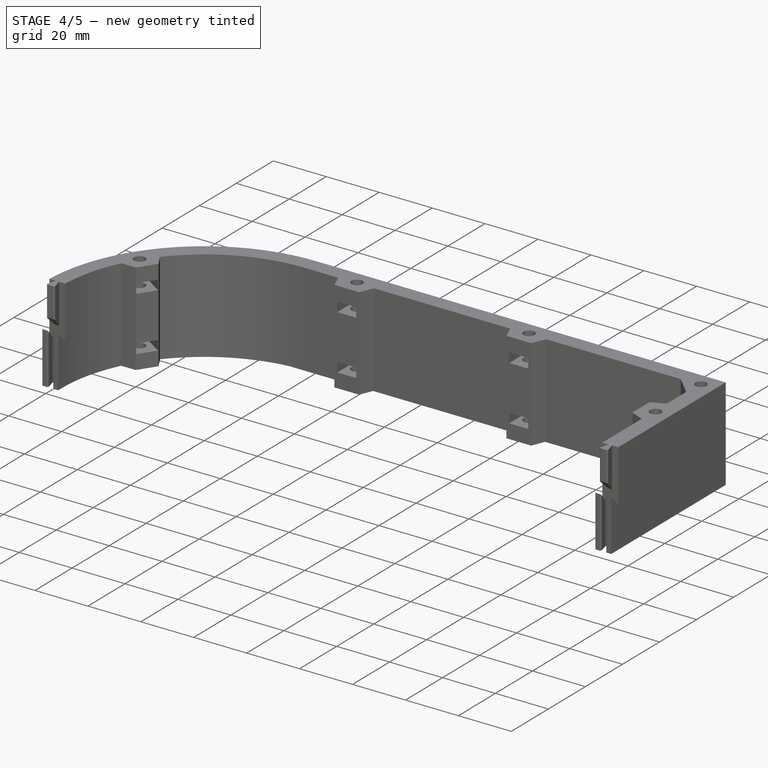
[diagram: stage 4 of 5 — iso view after this stage's code; geometry added in this stage tinted green]
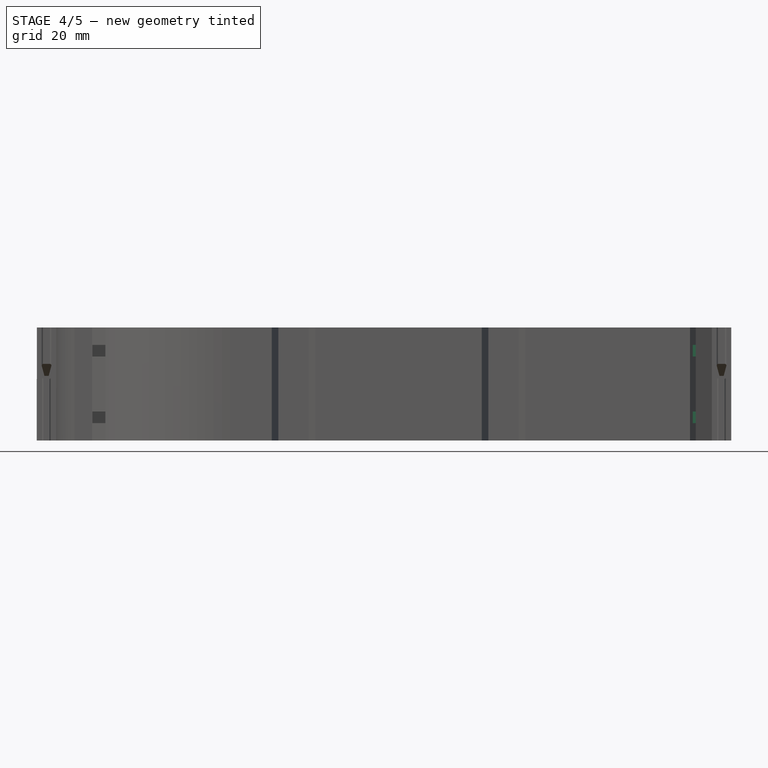
[diagram: stage 4 of 5 — front view after this stage's code; geometry added in this stage tinted green]
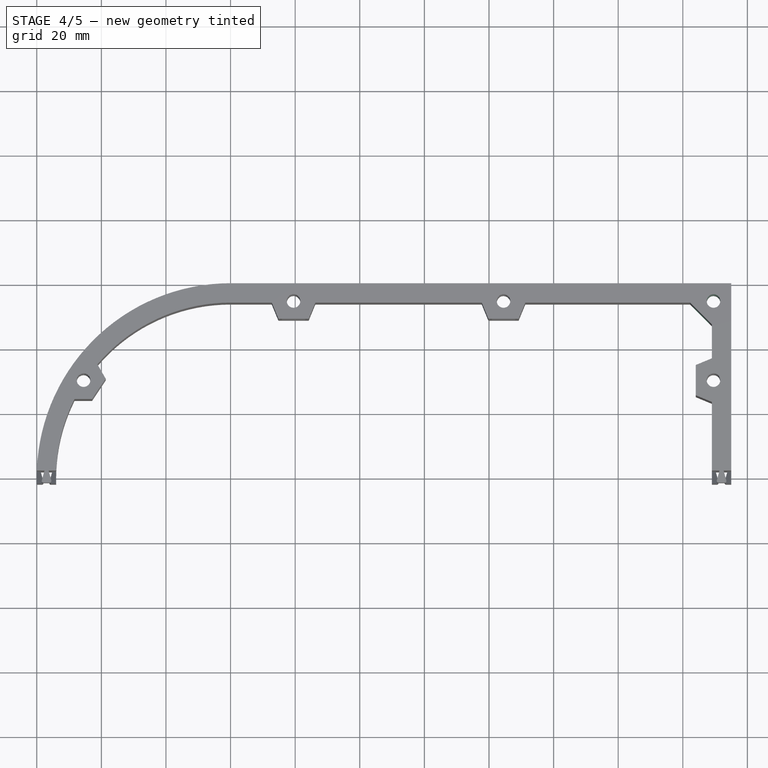
[diagram: stage 4 of 5 — top view after this stage's code; geometry added in this stage tinted green]
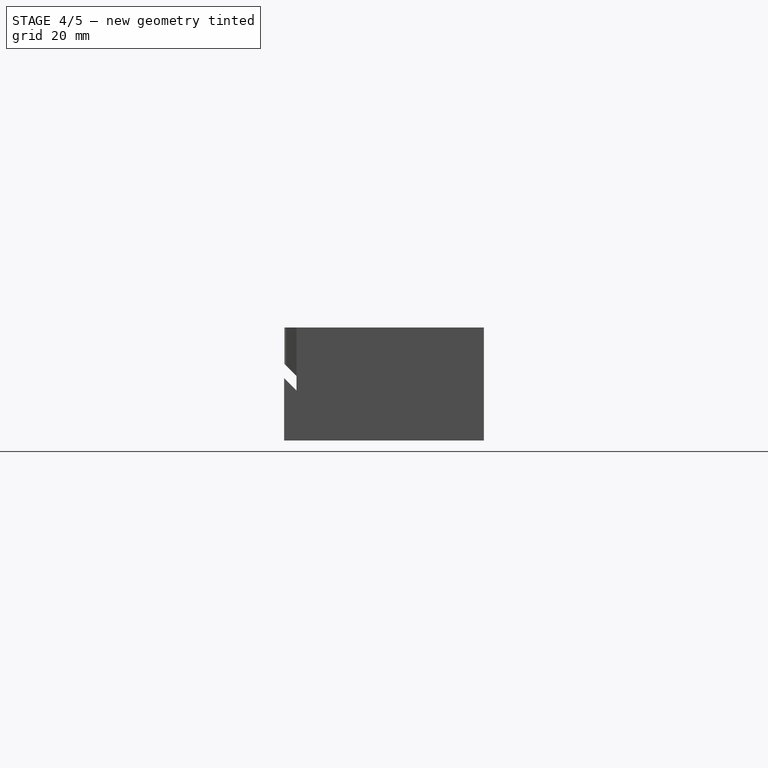
[diagram: stage 4 of 5 — right view after this stage's code; geometry added in this stage tinted green]
FEATURE [Sketcher::SketchObject] Sketch008
  ExternalGeometry = -> [Pocket005]
  FullyConstrained = true
  MapMode = 5
  Placement = pos=(98.1109,98.1109,0) rot=(0.862856,-0.357407,-0.357407;1.71777rad)
  Support = -> [Pocket005]
  sketch-geometry (9):
    g0: LineSegment StartX=63.5751 StartY=12.1 StartZ=0 EndX=70.7751 EndY=12.1 EndZ=0
    g1: LineSegment StartX=70.7751 StartY=12.1 StartZ=0 EndX=70.7751 EndY=8.5 EndZ=0
    g2: LineSegment StartX=70.7751 StartY=8.5 StartZ=0 EndX=63.5751 EndY=8.5 EndZ=0
    g3: LineSegment StartX=63.5751 StartY=8.5 StartZ=0 EndX=63.5751 EndY=12.1 EndZ=0
    g4: LineSegment StartX=63.5751 StartY=-8.5 StartZ=0 EndX=70.7751 EndY=-8.5 EndZ=0
    g5: LineSegment StartX=70.7751 StartY=-8.5 StartZ=0 EndX=70.7751 EndY=-12.1 EndZ=0
    g6: LineSegment StartX=70.7751 StartY=-12.1 StartZ=0 EndX=63.5751 EndY=-12.1 EndZ=0
    g7: LineSegment StartX=63.5751 StartY=-12.1 StartZ=0 EndX=63.5751 EndY=-8.5 EndZ=0
    g8: LineSegment StartX=67.1751 StartY=17.5 StartZ=0 EndX=67.1751 EndY=12.1 EndZ=0
  constraints (25):
    c: Coincident(g0,g1)
    c: Coincident(g1,g2)
    c: Coincident(g2,g3)
    c: Coincident(g3,g0)
    c: Horizontal(g0)
    c: Horizontal(g2)
    c: Vertical(g1)
    c: Vertical(g3)
    c: Coincident(g4,g5)
    c: Coincident(g5,g6)
    c: Coincident(g6,g7)
    c: Coincident(g7,g4)
    c: Horizontal(g4)
    c: Horizontal(g6)
    c: Vertical(g5)
    c: Vertical(g7)
    c: Equal(g2,g4)
    c: Equal(g5,g1)
    c: Symmetric(g4,g1,g-1)
    c: Vertical(g8)
    c: Symmetric(g0,g0,g8)
    c: DistanceY(g3,g3) = 3.6
    c: DistanceX(g0,g0) = 7.2
    c: Symmetric(g-3,g-3,g8)
    c: DistanceY(g1,g-3) = 9
FEATURE [PartDesign::Pocket] Pocket006
  BaseFeature = -> Pocket005
  Length = 9.5
  Length2 = 100
  Profile = -> Sketch008
  Type = 0
FEATURE [Sketcher::SketchObject] Sketch009
  FullyConstrained = true
  MapMode = 5
  Placement = pos=(0,-2,0) rot=(1,0,0;1.5708rad)
  Support = -> [Pocket006]
  sketch-geometry (4):
    g0: LineSegment StartX=-60.1059 StartY=2.2 StartZ=0 EndX=159.894 EndY=2.2 EndZ=0
    g1: LineSegment StartX=159.894 StartY=2.2 StartZ=0 EndX=159.894 EndY=-17.8 EndZ=0
    g2: LineSegment StartX=159.894 StartY=-17.8 StartZ=0 EndX=-60.1059 EndY=-17.8 EndZ=0
    g3: LineSegment StartX=-60.1059 StartY=-17.8 StartZ=0 EndX=-60.1059 EndY=2.2 EndZ=0
  constraints (12):
    c: Coincident(g0,g1)
    c: Coincident(g1,g2)
    c: Coincident(g2,g3)
    c: Coincident(g3,g0)
    c: Horizontal(g0)
    c: Horizontal(g2)
    c: Vertical(g1)
    c: Vertical(g3)
    c: DistanceX(g0) = -60.1058
    c: DistanceY(g0) = 2.2
    c: DistanceY(g3,g3) = 20
    c: DistanceX(g2,g2) = 220
FEATURE [PartDesign::Pocket] Pocket007
  BaseFeature = -> Pocket006
  Length = 0.2
  Length2 = 100
  Profile = -> Sketch009
  Type = 0
FEATURE [PartDesign::Fillet] Fillet001
  Base = -> Pocket007 [Edge207,Edge224,Edge187,Edge194]
  BaseFeature = -> Pocket007
  Radius = 0.5
  SupportTransform = false
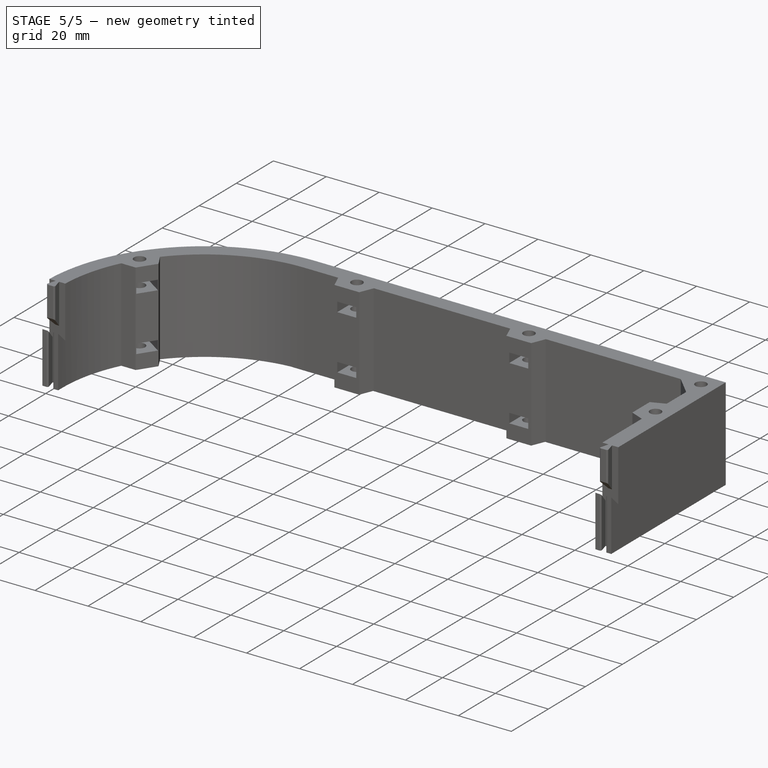
[diagram: stage 5 of 5 — iso view after this stage's code; geometry added in this stage tinted green]
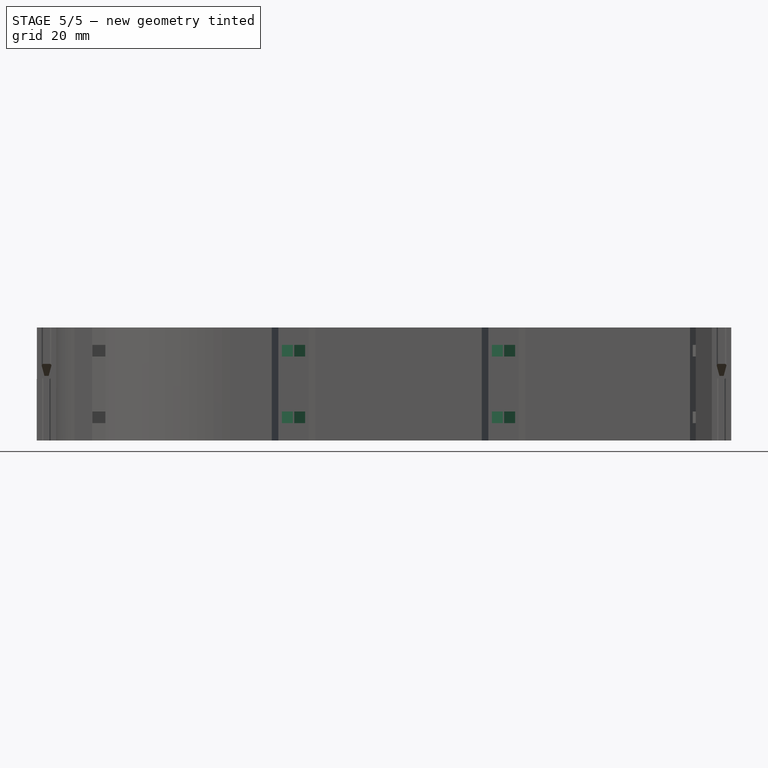
[diagram: stage 5 of 5 — front view after this stage's code; geometry added in this stage tinted green]
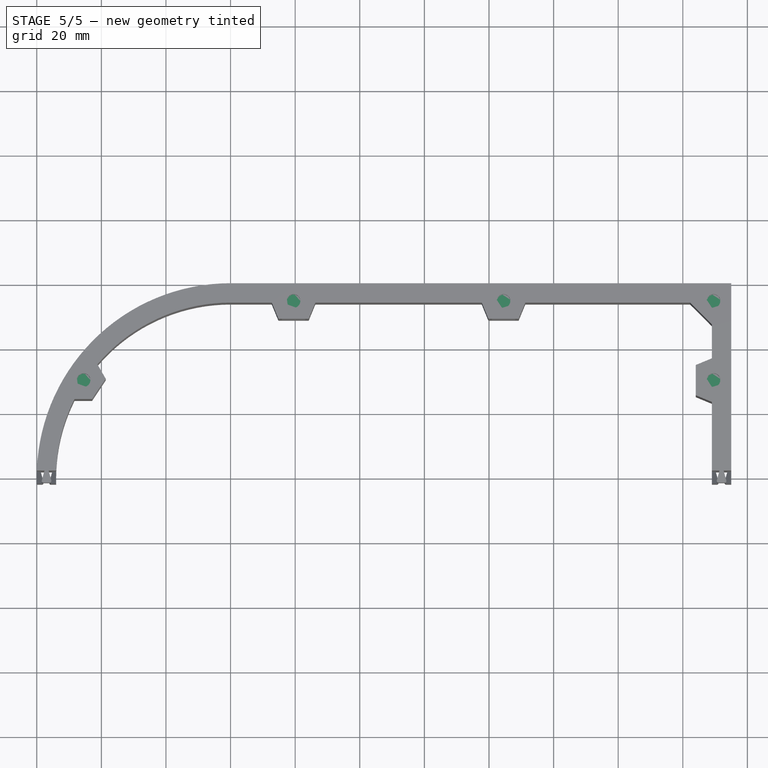
[diagram: stage 5 of 5 — top view after this stage's code; geometry added in this stage tinted green]
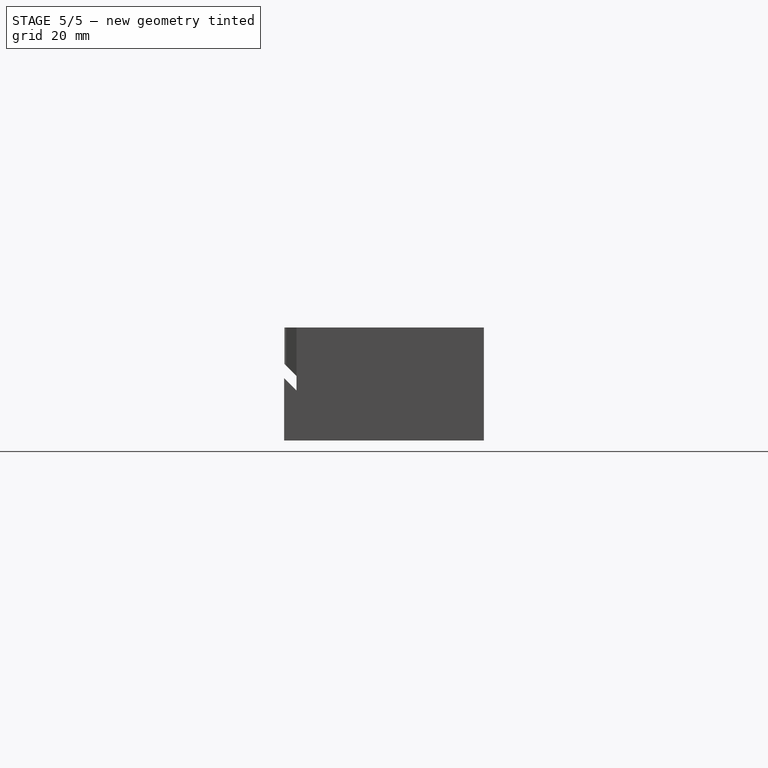
[diagram: stage 5 of 5 — right view after this stage's code; geometry added in this stage tinted green]
FEATURE [Sketcher::SketchObject] Sketch010
  ExternalGeometry = -> [Fillet001]
  FullyConstrained = true
  MapMode = 5
  Placement = pos=(-8e-16,-6e-16,-8.5) rot=(1,0,0;3.14159rad)
  Support = -> [Fillet001]
  sketch-geometry (5):
    g0: Circle CenterX=149.5 CenterY=-30 CenterZ=0 NormalX=0 NormalY=0 NormalZ=1 AngleXU=0 Radius=2.1
    g1: Circle CenterX=149.5 CenterY=-54.5 CenterZ=0 NormalX=0 NormalY=0 NormalZ=1 AngleXU=0 Radius=2.1
    g2: Circle CenterX=84.5 CenterY=-54.5 CenterZ=0 NormalX=0 NormalY=0 NormalZ=1 AngleXU=0 Radius=2.1
    g3: Circle CenterX=19.5 CenterY=-54.5 CenterZ=0 NormalX=0 NormalY=0 NormalZ=1 AngleXU=0 Radius=2.1
    g4: Circle CenterX=-45.5 CenterY=-30 CenterZ=0 NormalX=0 NormalY=0 NormalZ=1 AngleXU=0 Radius=2.1
  constraints (10):
    c: Coincident(g0,g-7)
    c: Coincident(g1,g-6)
    c: Coincident(g2,g-5)
    c: Coincident(g3,g-4)
    c: Coincident(g4,g-3)
    c: Equal(g4,g3)
    c: Equal(g3,g2)
    c: Equal(g2,g1)
    c: Equal(g1,g0)
    c: Radius(g0) = 2.1
FEATURE [PartDesign::Pad] Pad002
  BaseFeature = -> Fillet001
  Direction = (1,1,1)
  Length = 0.3
  Length2 = 100
  Profile = -> Sketch010
  Reversed = true
  Type = 0
FEATURE [PartDesign::LinearPattern] LinearPattern
  BaseFeature = -> Pad002
  Direction = -> Z_Axis
  Length = 20.6
  Occurrences = 2
  Originals = -> [Pad002]
FEATURE [PartDesign::Chamfer] Chamfer001
  Angle = 45
  Base = -> LinearPattern [Edge277,Edge281,Edge291,Edge286,Edge322,Edge318,Edge331,Edge328,Edge303,Edge299,Edge312,Edge309,Edge267,Edge272,Edge262,Edge258,Edge246,Edge255,Edge252,Edge242]
  BaseFeature = -> LinearPattern
  ChamferType = 1
  FlipDirection = false
  Size = 1.96
  Size2 = 3.4
  SupportTransform = false
FEATURE [PartDesign::Body] Body
  Group = -> [Sketch,Pad,Sketch001,Pocket,Sketch002,Pocket001,Sketch003,Pad001,Sketch004,Pocket002,Chamfer,Fillet,Sketch005,Pocket003,Sketch006,Pocket004,Sketch007,Pocket005,Sketch008,Pocket006,Sketch009,Pocket007,Fillet001,Sketch010,Pad002,LinearPattern,Chamfer001]
  Origin = -> Origin
  Tip = -> Chamfer001
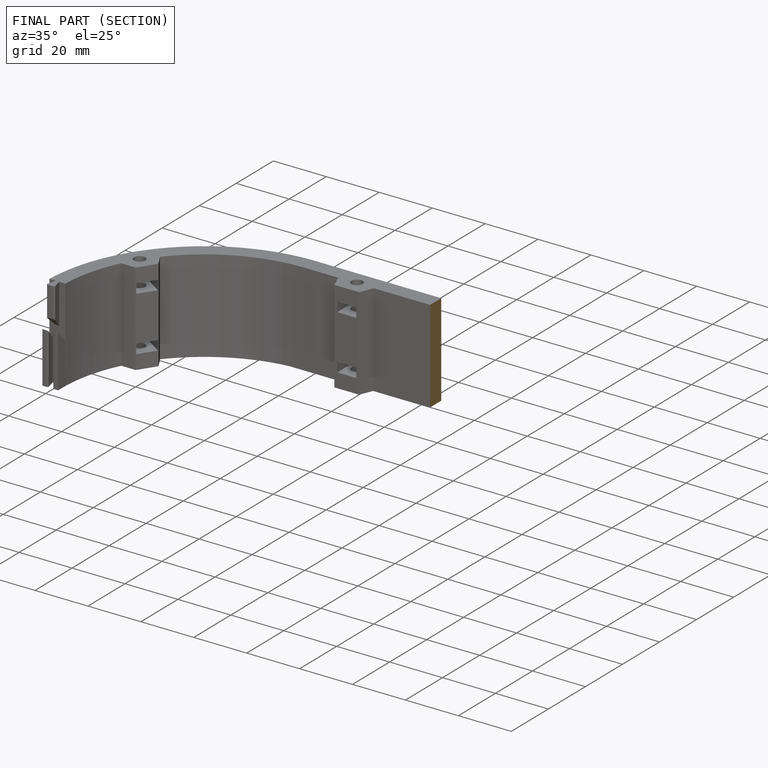
[diagram: finished part — half-section view (interior)]
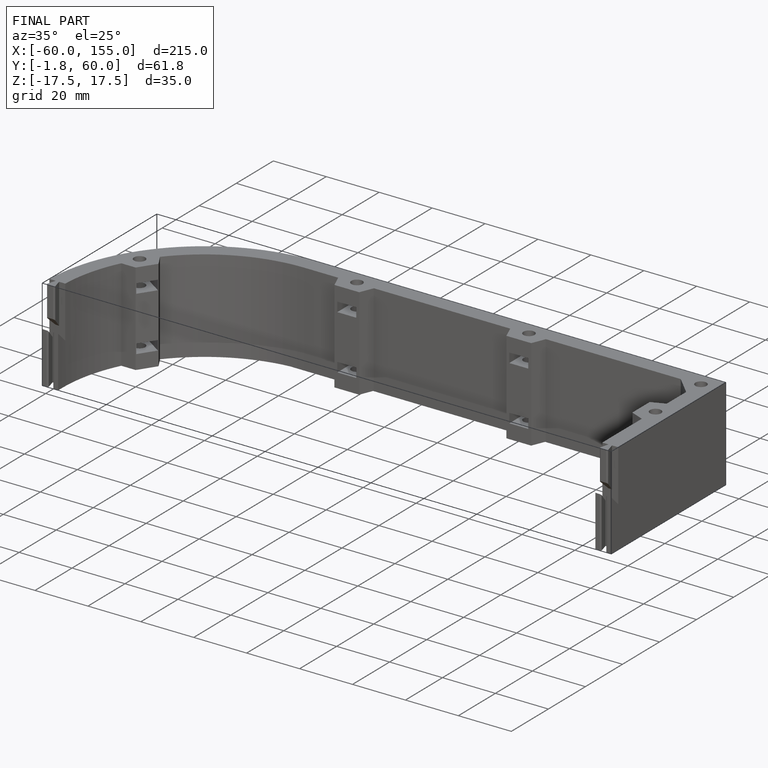
[diagram: finished part — iso view with bounding-box wireframe]
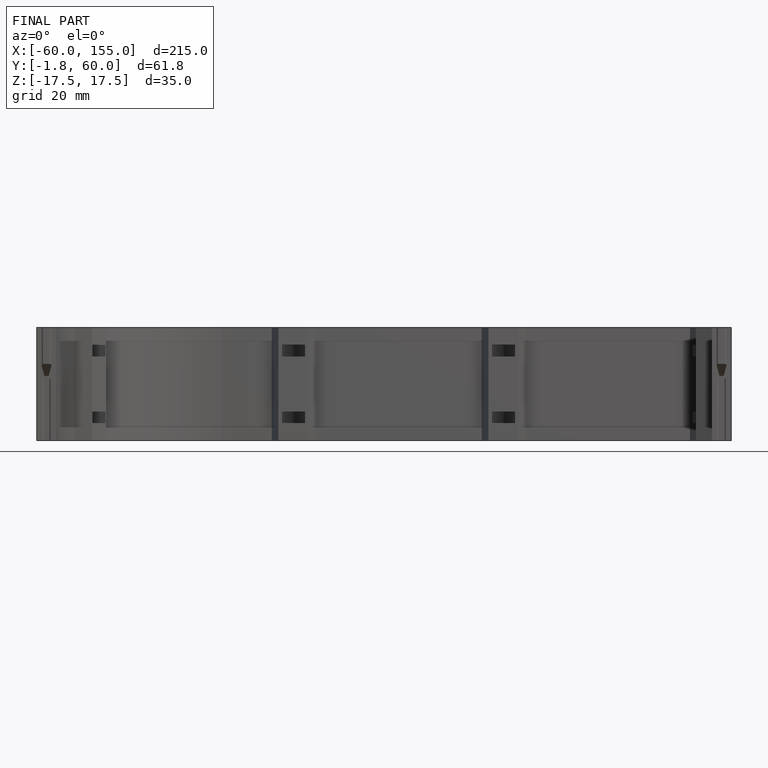
[diagram: finished part — front view with bounding-box wireframe]
